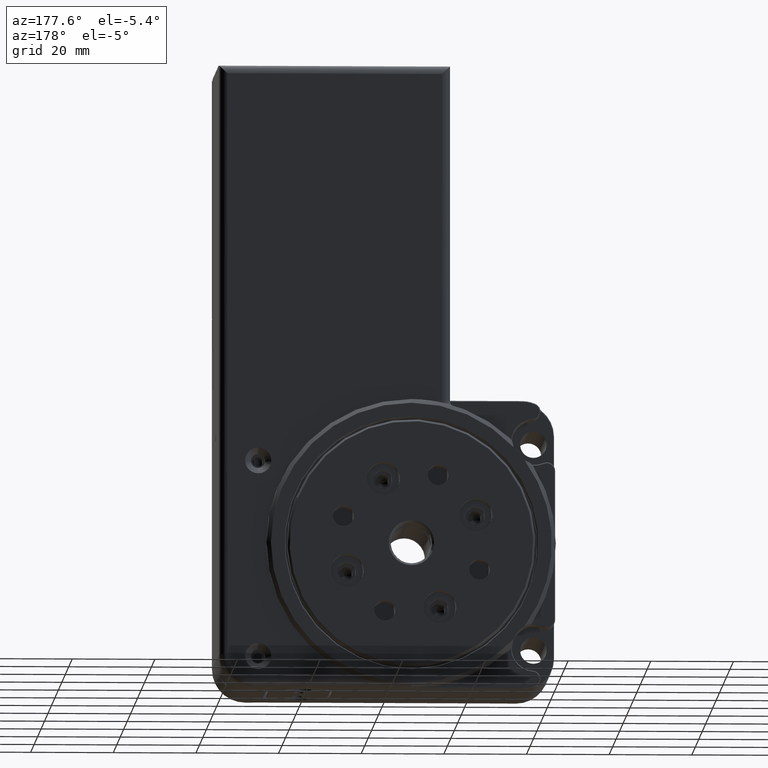
[diagram: clean part render]
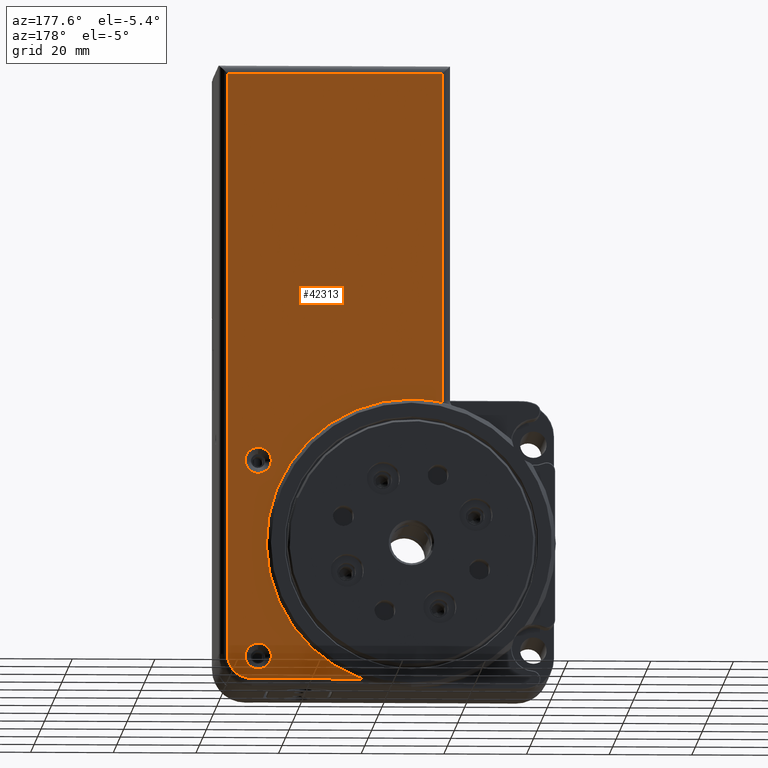
[diagram: same view with one face highlighted and labeled with its STEP entity id]
A machine part, auxiliary view. The second image highlights one B-rep face of the part: STEP entity #42313.
In plain terms, the highlighted planar face has unit normal (-0, 1, 0).
Its self-contained STEP definition (entity closure, byte-faithful):
#1396 = AXIS2_PLACEMENT_3D ( 'NONE', #46833, #16498, #25154 ) ;
#2363 = EDGE_CURVE ( 'NONE', #18639, #57101, #30346, .T. ) ;
#2470 = DIRECTION ( 'NONE',  ( 4.956352788505163391E-17, 0.000000000000000000, -1.000000000000000000 ) ) ;
#2692 = CARTESIAN_POINT ( 'NONE',  ( 32.39068927312799673, 22.33187534622830128, 44.00000000000000000 ) ) ;
#3822 = FACE_OUTER_BOUND ( 'NONE', #55595, .T. ) ;
#4195 = DIRECTION ( 'NONE',  ( 0.000000000000000000, 1.000000000000000000, 0.000000000000000000 ) ) ;
#4222 = AXIS2_PLACEMENT_3D ( 'NONE', #21012, #34034, #51922 ) ;
#4544 = ORIENTED_EDGE ( 'NONE', *, *, #18649, .F. ) ;
#4955 = DIRECTION ( 'NONE',  ( -1.000000000000000000, 0.000000000000000000, -5.551115123125779621E-17 ) ) ;
#4994 = ORIENTED_EDGE ( 'NONE', *, *, #14079, .T. ) ;
#5142 = VERTEX_POINT ( 'NONE', #18149 ) ;
#5706 = CIRCLE ( 'NONE', #37924, 3.149999999999999911 ) ;
#6793 = CIRCLE ( 'NONE', #15996, 3.500000000000003109 ) ;
#7293 = CARTESIAN_POINT ( 'NONE',  ( 38.39068927312799673, 22.33187534622830128, 79.50000000000000000 ) ) ;
#8432 = EDGE_CURVE ( 'NONE', #48640, #18639, #49042, .T. ) ;
#8667 = CIRCLE ( 'NONE', #42755, 3.149999999999999911 ) ;
#8800 = DIRECTION ( 'NONE',  ( 0.000000000000000000, 0.000000000000000000, -1.000000000000000000 ) ) ;
#9450 = DIRECTION ( 'NONE',  ( 0.000000000000000000, 0.000000000000000000, -1.000000000000000000 ) ) ;
#9568 = ORIENTED_EDGE ( 'NONE', *, *, #2363, .T. ) ;
#10601 = DIRECTION ( 'NONE',  ( 0.000000000000000000, 1.000000000000000000, 0.000000000000000000 ) ) ;
#10898 = EDGE_CURVE ( 'NONE', #54444, #53348, #6793, .T. ) ;
#11014 = ORIENTED_EDGE ( 'NONE', *, *, #22599, .F. ) ;
#11529 = EDGE_CURVE ( 'NONE', #28011, #51461, #8667, .T. ) ;
#11670 = CARTESIAN_POINT ( 'NONE',  ( -6.109310726871981068, 22.33187534622830128, 77.00000000000000000 ) ) ;
#13538 = CARTESIAN_POINT ( 'NONE',  ( -1.359310726871987951, 22.33187534622830128, 191.0000000000000000 ) ) ;
#13995 = CARTESIAN_POINT ( 'NONE',  ( 30.89068927312805002, 22.33187534622830128, 49.50000000000000000 ) ) ;
#14079 = EDGE_CURVE ( 'NONE', #53348, #48640, #54381, .T. ) ;
#14977 = EDGE_LOOP ( 'NONE', ( #4544, #33288 ) ) ;
#15618 = ORIENTED_EDGE ( 'NONE', *, *, #8432, .T. ) ;
#15996 = AXIS2_PLACEMENT_3D ( 'NONE', #47367, #20212, #16180 ) ;
#16180 = DIRECTION ( 'NONE',  ( 1.982541115402063335E-15, 0.000000000000000000, -1.000000000000000000 ) ) ;
#16498 = DIRECTION ( 'NONE',  ( -0.000000000000000000, 1.000000000000000000, 0.000000000000000000 ) ) ;
#16562 = DIRECTION ( 'NONE',  ( 0.000000000000000000, 1.000000000000000000, 0.000000000000000000 ) ) ;
#16841 = VECTOR ( 'NONE', #47965, 1000.000000000000000 ) ;
#17364 = EDGE_LOOP ( 'NONE', ( #17387, #27619 ) ) ;
#17387 = ORIENTED_EDGE ( 'NONE', *, *, #11529, .F. ) ;
#18149 = CARTESIAN_POINT ( 'NONE',  ( 5.552593062818630187, 22.33187534622830128, 44.00000000000000000 ) ) ;
#18639 = VERTEX_POINT ( 'NONE', #31668 ) ;
#18649 = EDGE_CURVE ( 'NONE', #51313, #31001, #23709, .T. ) ;
#19145 = ORIENTED_EDGE ( 'NONE', *, *, #47439, .T. ) ;
#19328 = CIRCLE ( 'NONE', #23035, 35.00000000000000000 ) ;
#20212 = DIRECTION ( 'NONE',  ( 0.000000000000000000, -1.000000000000000000, 0.000000000000000000 ) ) ;
#20246 = FACE_BOUND ( 'NONE', #17364, .T. ) ;
#20404 = CARTESIAN_POINT ( 'NONE',  ( 30.89068927312805002, 22.33187534622830128, 52.65000000000000568 ) ) ;
#21012 = CARTESIAN_POINT ( 'NONE',  ( 32.39068927312799673, 22.33187534622830128, 50.00000000000000000 ) ) ;
#21462 = CARTESIAN_POINT ( 'NONE',  ( 30.89068927312805002, 22.33187534622830128, 97.00000000000000000 ) ) ;
#21751 = VERTEX_POINT ( 'NONE', #23928 ) ;
#22599 = EDGE_CURVE ( 'NONE', #21751, #5142, #19328, .T. ) ;
#22606 = CIRCLE ( 'NONE', #4222, 5.999999999999998224 ) ;
#23035 = AXIS2_PLACEMENT_3D ( 'NONE', #11670, #16562, #2470 ) ;
#23419 = AXIS2_PLACEMENT_3D ( 'NONE', #13995, #40280, #31609 ) ;
#23499 = CARTESIAN_POINT ( 'NONE',  ( 30.89068927312805002, 22.33187534622830128, 100.1500000000000057 ) ) ;
#23544 = VECTOR ( 'NONE', #27060, 1000.000000000000000 ) ;
#23709 = CIRCLE ( 'NONE', #28337, 3.149999999999999911 ) ;
#23928 = CARTESIAN_POINT ( 'NONE',  ( -6.109310726871981068, 22.33187534622830128, 112.0000000000000000 ) ) ;
#24637 = EDGE_CURVE ( 'NONE', #31001, #51313, #5706, .T. ) ;
#24875 = PLANE ( 'NONE',  #1396 ) ;
#25154 = DIRECTION ( 'NONE',  ( 1.000000000000000000, 0.000000000000000000, 0.000000000000000000 ) ) ;
#27060 = DIRECTION ( 'NONE',  ( 1.000000000000000000, 0.000000000000000000, 5.551115123125779621E-17 ) ) ;
#27534 = AXIS2_PLACEMENT_3D ( 'NONE', #53367, #10601, #45538 ) ;
#27619 = ORIENTED_EDGE ( 'NONE', *, *, #40148, .F. ) ;
#28011 = VERTEX_POINT ( 'NONE', #36850 ) ;
#28250 = DIRECTION ( 'NONE',  ( 0.000000000000000000, 1.000000000000000000, 0.000000000000000000 ) ) ;
#28297 = LINE ( 'NONE', #54039, #56624 ) ;
#28337 = AXIS2_PLACEMENT_3D ( 'NONE', #43827, #30545, #9450 ) ;
#29650 = CARTESIAN_POINT ( 'NONE',  ( 30.89068927312805002, 22.33187534622830128, 93.85000000000000853 ) ) ;
#30346 = LINE ( 'NONE', #7293, #16841 ) ;
#30459 = EDGE_CURVE ( 'NONE', #54444, #21751, #43256, .T. ) ;
#30545 = DIRECTION ( 'NONE',  ( 0.000000000000000000, 1.000000000000000000, 0.000000000000000000 ) ) ;
#31001 = VERTEX_POINT ( 'NONE', #23499 ) ;
#31209 = ORIENTED_EDGE ( 'NONE', *, *, #10898, .T. ) ;
#31609 = DIRECTION ( 'NONE',  ( 0.000000000000000000, 0.000000000000000000, -1.000000000000000000 ) ) ;
#31668 = CARTESIAN_POINT ( 'NONE',  ( 38.39068927312805357, 22.33187534622830128, 191.0000000000000000 ) ) ;
#32886 = CARTESIAN_POINT ( 'NONE',  ( 30.89068927312805002, 22.33187534622830128, 49.50000000000000000 ) ) ;
#33288 = ORIENTED_EDGE ( 'NONE', *, *, #24637, .F. ) ;
#33924 = ORIENTED_EDGE ( 'NONE', *, *, #30459, .F. ) ;
#34034 = DIRECTION ( 'NONE',  ( 0.000000000000000000, 1.000000000000000000, 0.000000000000000000 ) ) ;
#34748 = CARTESIAN_POINT ( 'NONE',  ( -13.60931072687198018, 22.33187534622830128, 191.0000000000000000 ) ) ;
#35007 = EDGE_CURVE ( 'NONE', #57101, #42405, #22606, .T. ) ;
#36850 = CARTESIAN_POINT ( 'NONE',  ( 30.89068927312805002, 22.33187534622830128, 46.35000000000000142 ) ) ;
#37924 = AXIS2_PLACEMENT_3D ( 'NONE', #21462, #4195, #8800 ) ;
#38018 = CARTESIAN_POINT ( 'NONE',  ( -13.66621526664100017, 22.33187534622830128, 111.1744523551852097 ) ) ;
#39890 = VECTOR ( 'NONE', #53014, 1000.000000000000000 ) ;
#40148 = EDGE_CURVE ( 'NONE', #51461, #28011, #48348, .T. ) ;
#40280 = DIRECTION ( 'NONE',  ( 0.000000000000000000, 1.000000000000000000, 0.000000000000000000 ) ) ;
#42313 = ADVANCED_FACE ( 'NONE', ( #51459, #20246, #3822 ), #24875, .T. ) ;
#42405 = VERTEX_POINT ( 'NONE', #2692 ) ;
#42755 = AXIS2_PLACEMENT_3D ( 'NONE', #32886, #28250, #54847 ) ;
#43181 = ORIENTED_EDGE ( 'NONE', *, *, #35007, .T. ) ;
#43256 = CIRCLE ( 'NONE', #27534, 35.00000000000000000 ) ;
#43716 = CARTESIAN_POINT ( 'NONE',  ( 38.39068927312799673, 22.33187534622830128, 50.00000000000000000 ) ) ;
#43827 = CARTESIAN_POINT ( 'NONE',  ( 30.89068927312805002, 22.33187534622830128, 97.00000000000000000 ) ) ;
#45538 = DIRECTION ( 'NONE',  ( 4.956352788505163391E-17, 0.000000000000000000, -1.000000000000000000 ) ) ;
#46833 = CARTESIAN_POINT ( 'NONE',  ( -1.359310726871981956, 22.33187534622830128, 79.50000000000000000 ) ) ;
#47367 = CARTESIAN_POINT ( 'NONE',  ( -17.10931072687199972, 22.33187534622830128, 111.8030171105895931 ) ) ;
#47439 = EDGE_CURVE ( 'NONE', #42405, #5142, #28297, .T. ) ;
#47965 = DIRECTION ( 'NONE',  ( -1.295260195396016046E-16, 0.000000000000000000, -1.000000000000000000 ) ) ;
#48348 = CIRCLE ( 'NONE', #23419, 3.149999999999999911 ) ;
#48386 = CARTESIAN_POINT ( 'NONE',  ( -13.60931072687198018, 22.33187534622830128, 193.0000000000000000 ) ) ;
#48640 = VERTEX_POINT ( 'NONE', #34748 ) ;
#49042 = LINE ( 'NONE', #13538, #23544 ) ;
#49741 = CARTESIAN_POINT ( 'NONE',  ( -13.60931072687198018, 22.33187534622830128, 111.8030171105895931 ) ) ;
#51313 = VERTEX_POINT ( 'NONE', #29650 ) ;
#51459 = FACE_BOUND ( 'NONE', #14977, .T. ) ;
#51461 = VERTEX_POINT ( 'NONE', #20404 ) ;
#51922 = DIRECTION ( 'NONE',  ( 0.000000000000000000, 0.000000000000000000, -1.000000000000000000 ) ) ;
#53014 = DIRECTION ( 'NONE',  ( -5.551115123125779621E-17, 0.000000000000000000, 1.000000000000000000 ) ) ;
#53348 = VERTEX_POINT ( 'NONE', #49741 ) ;
#53367 = CARTESIAN_POINT ( 'NONE',  ( -6.109310726871981068, 22.33187534622830128, 77.00000000000000000 ) ) ;
#54039 = CARTESIAN_POINT ( 'NONE',  ( -6.109310726871981068, 22.33187534622830128, 44.00000000000000000 ) ) ;
#54381 = LINE ( 'NONE', #48386, #39890 ) ;
#54444 = VERTEX_POINT ( 'NONE', #38018 ) ;
#54847 = DIRECTION ( 'NONE',  ( 0.000000000000000000, 0.000000000000000000, -1.000000000000000000 ) ) ;
#55595 = EDGE_LOOP ( 'NONE', ( #43181, #19145, #11014, #33924, #31209, #4994, #15618, #9568 ) ) ;
#56624 = VECTOR ( 'NONE', #4955, 1000.000000000000000 ) ;
#57101 = VERTEX_POINT ( 'NONE', #43716 ) ;